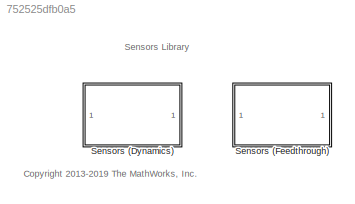
MODEL slx_752525dfb0a5
KIND library
CONFIG AbsTol = auto
CONFIG EnableMultiTasking = on
CONFIG FixedStep = auto
CONFIG MaxStep = auto
CONFIG MinStep = auto
CONFIG RelTol = 1e-3
CONFIG SampleTimeConstraint = Unconstrained
CONFIG SolverName = ode45
CONFIG StartTime = 0.0
CONFIG StopTime = 10.0
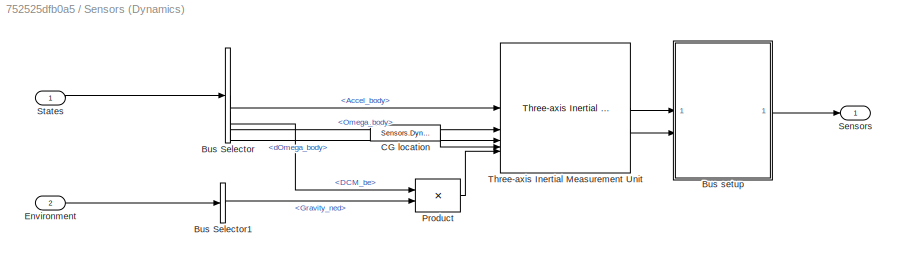
BLOCK [SubSystem] Sensors (Dynamics)
  TreatAsAtomicUnit = on
  VariantControl = Variants.Sensors==1
BLOCK [BusSelector] Sensors (Dynamics)/Bus Selector
  OutputSignals = Accel_body,Omega_body,dOmega_body,DCM_be
BLOCK [BusSelector] Sensors (Dynamics)/Bus Selector1
  OutputSignals = Gravity_ned
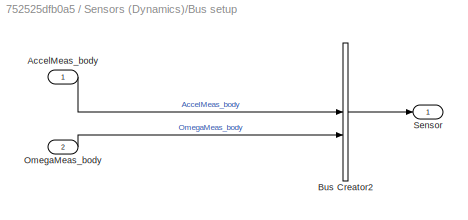
BLOCK [SubSystem] Sensors (Dynamics)/Bus setup
BLOCK [Inport] Sensors (Dynamics)/Bus setup/AccelMeas_body
BLOCK [BusCreator] Sensors (Dynamics)/Bus setup/Bus Creator2
  DisplayOption = bar
  InheritFromInputs = on
  Inputs = 2
  NonVirtualBus = on
  OutDataTypeStr = Bus: SensorsBus
BLOCK [Inport] Sensors (Dynamics)/Bus setup/OmegaMeas_body
  Port = 2
BLOCK [Outport] Sensors (Dynamics)/Bus setup/Sensor
  OutDataTypeStr = Bus: SensorsBus
  VectorParamsAs1DForOutWhenUnconnected = off
BLOCK [Constant] Sensors (Dynamics)/CG location
  Value = Sensors.Dynamics.IMU.cg
BLOCK [Inport] Sensors (Dynamics)/Environment
  OutDataTypeStr = Bus: EnvironmentBus
  Port = 2
BLOCK [Product] Sensors (Dynamics)/Product
  Multiplication = Matrix(*)
BLOCK [Outport] Sensors (Dynamics)/Sensors
  OutDataTypeStr = Bus: SensorsBus
  VectorParamsAs1DForOutWhenUnconnected = off
BLOCK [Inport] Sensors (Dynamics)/States
  OutDataTypeStr = Bus: StatesBus
BLOCK [Reference] Sensors (Dynamics)/Three-axis Inertial Measurement Unit  REF=aerolibnav/Three-axis Inertial
Measurement Unit
  SourceBlock = aerolibnav/Three-axis Inertial\nMeasurement Unit
  SourceType = Three-axis Inertial Measurement Unit
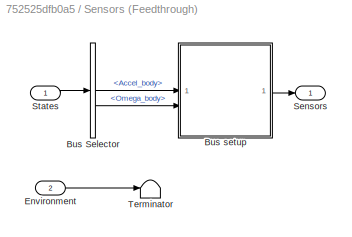
BLOCK [SubSystem] Sensors (Feedthrough)
  TreatAsAtomicUnit = on
BLOCK [BusSelector] Sensors (Feedthrough)/Bus Selector
  OutputSignals = Accel_body,Omega_body
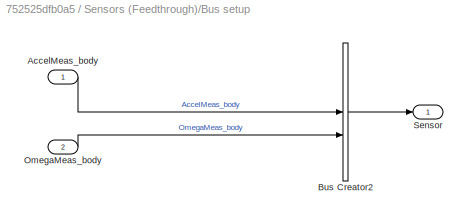
BLOCK [SubSystem] Sensors (Feedthrough)/Bus setup
BLOCK [Inport] Sensors (Feedthrough)/Bus setup/AccelMeas_body
BLOCK [BusCreator] Sensors (Feedthrough)/Bus setup/Bus Creator2
  DisplayOption = bar
  InheritFromInputs = on
  Inputs = 2
  NonVirtualBus = on
  OutDataTypeStr = Bus: SensorsBus
BLOCK [Inport] Sensors (Feedthrough)/Bus setup/OmegaMeas_body
  Port = 2
BLOCK [Outport] Sensors (Feedthrough)/Bus setup/Sensor
  OutDataTypeStr = Bus: SensorsBus
  VectorParamsAs1DForOutWhenUnconnected = off
BLOCK [Inport] Sensors (Feedthrough)/Environment
  OutDataTypeStr = Bus: EnvironmentBus
  Port = 2
BLOCK [Outport] Sensors (Feedthrough)/Sensors
  OutDataTypeStr = Bus: SensorsBus
  VectorParamsAs1DForOutWhenUnconnected = off
BLOCK [Inport] Sensors (Feedthrough)/States
  OutDataTypeStr = Bus: StatesBus
BLOCK [Terminator] Sensors (Feedthrough)/Terminator
ANNOTATION (root): <copyright redacted>
ANNOTATION (root): Sensors Library
LINE Sensors (Dynamics)/Bus Selector1:1 -> Sensors (Dynamics)/Product:2
LINE Sensors (Dynamics)/Bus Selector:1 -> Sensors (Dynamics)/Three-axis Inertial Measurement Unit:1
LINE Sensors (Dynamics)/Bus Selector:2 -> Sensors (Dynamics)/Three-axis Inertial Measurement Unit:2
LINE Sensors (Dynamics)/Bus Selector:3 -> Sensors (Dynamics)/Three-axis Inertial Measurement Unit:3
LINE Sensors (Dynamics)/Bus Selector:4 -> Sensors (Dynamics)/Product:1
LINE Sensors (Dynamics)/Bus setup/AccelMeas_body:1 -> Sensors (Dynamics)/Bus setup/Bus Creator2:1
LINE Sensors (Dynamics)/Bus setup/Bus Creator2:1 -> Sensors (Dynamics)/Bus setup/Sensor:1
LINE Sensors (Dynamics)/Bus setup/OmegaMeas_body:1 -> Sensors (Dynamics)/Bus setup/Bus Creator2:2
LINE Sensors (Dynamics)/Bus setup:1 -> Sensors (Dynamics)/Sensors:1
LINE Sensors (Dynamics)/CG location:1 -> Sensors (Dynamics)/Three-axis Inertial Measurement Unit:4
LINE Sensors (Dynamics)/Environment:1 -> Sensors (Dynamics)/Bus Selector1:1
LINE Sensors (Dynamics)/Product:1 -> Sensors (Dynamics)/Three-axis Inertial Measurement Unit:5
LINE Sensors (Dynamics)/States:1 -> Sensors (Dynamics)/Bus Selector:1
LINE Sensors (Dynamics)/Three-axis Inertial Measurement Unit:1 -> Sensors (Dynamics)/Bus setup:1
LINE Sensors (Dynamics)/Three-axis Inertial Measurement Unit:2 -> Sensors (Dynamics)/Bus setup:2
LINE Sensors (Feedthrough)/Bus Selector:1 -> Sensors (Feedthrough)/Bus setup:1
LINE Sensors (Feedthrough)/Bus Selector:2 -> Sensors (Feedthrough)/Bus setup:2
LINE Sensors (Feedthrough)/Bus setup/AccelMeas_body:1 -> Sensors (Feedthrough)/Bus setup/Bus Creator2:1
LINE Sensors (Feedthrough)/Bus setup/Bus Creator2:1 -> Sensors (Feedthrough)/Bus setup/Sensor:1
LINE Sensors (Feedthrough)/Bus setup/OmegaMeas_body:1 -> Sensors (Feedthrough)/Bus setup/Bus Creator2:2
LINE Sensors (Feedthrough)/Bus setup:1 -> Sensors (Feedthrough)/Sensors:1
LINE Sensors (Feedthrough)/Environment:1 -> Sensors (Feedthrough)/Terminator:1
LINE Sensors (Feedthrough)/States:1 -> Sensors (Feedthrough)/Bus Selector:1
